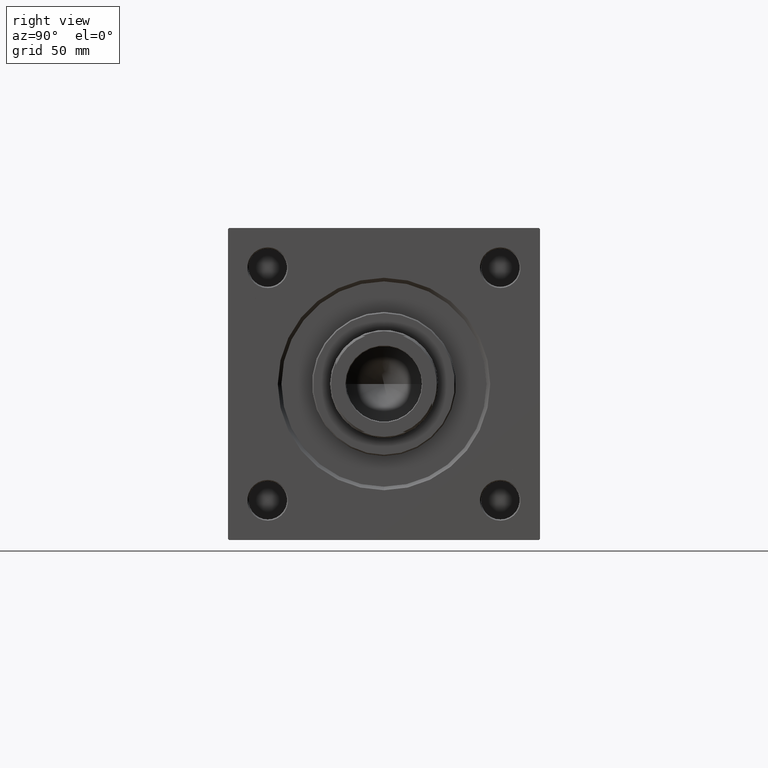
[diagram: clean part render]
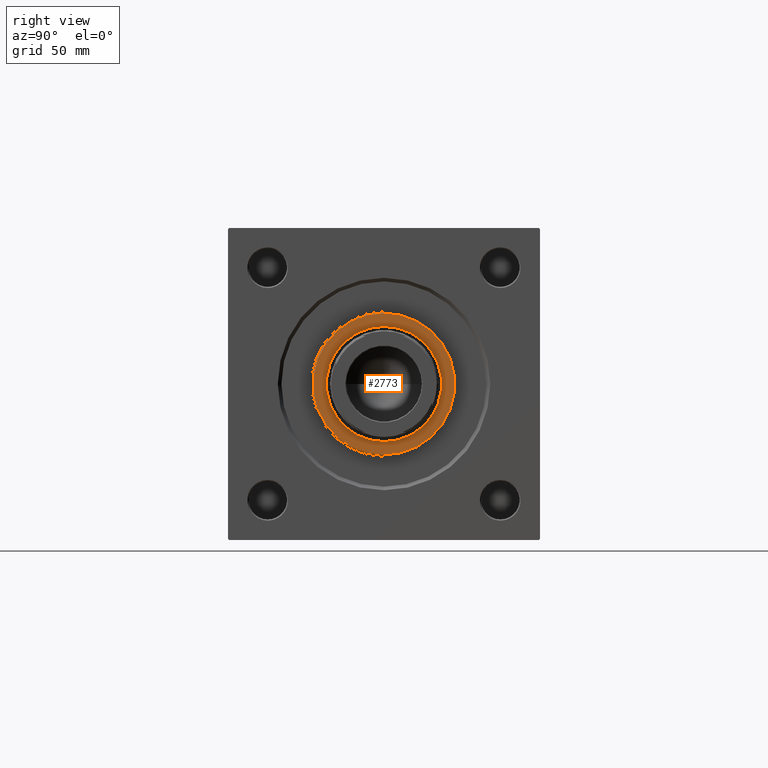
[diagram: same view with one face highlighted and labeled with its STEP entity id]
A machine part, right view. The second image highlights one B-rep face of the part: STEP entity #2773.
In plain terms, the highlighted planar face has unit normal (1, 0, 0).
Its self-contained STEP definition (entity closure, byte-faithful):
#1171 = EDGE_CURVE ( 'NONE', #33801, #13780, #24903, .T. ) ;
#2162 = FACE_BOUND ( 'NONE', #49470, .T. ) ;
#2281 = CARTESIAN_POINT ( 'NONE',  ( 24.00000000000000355, 0.000000000000000000, 37.69999999999999574 ) ) ;
#2773 = ADVANCED_FACE ( 'NONE', ( #2162, #44929 ), #36749, .T. ) ;
#4560 = AXIS2_PLACEMENT_3D ( 'NONE', #43165, #30374, #45980 ) ;
#6393 = CIRCLE ( 'NONE', #35030, 24.00000000000000355 ) ;
#8314 = EDGE_CURVE ( 'NONE', #10326, #44380, #13652, .T. ) ;
#10269 = CIRCLE ( 'NONE', #4560, 29.50000000000000000 ) ;
#10326 = VERTEX_POINT ( 'NONE', #44219 ) ;
#11711 = ORIENTED_EDGE ( 'NONE', *, *, #8314, .T. ) ;
#11857 = AXIS2_PLACEMENT_3D ( 'NONE', #21406, #17327, #32920 ) ;
#13652 = CIRCLE ( 'NONE', #42268, 29.50000000000000000 ) ;
#13780 = VERTEX_POINT ( 'NONE', #18159 ) ;
#14355 = EDGE_CURVE ( 'NONE', #13780, #33801, #6393, .T. ) ;
#15952 = EDGE_LOOP ( 'NONE', ( #49685, #11711 ) ) ;
#16600 = DIRECTION ( 'NONE',  ( 0.000000000000000000, 0.000000000000000000, 1.000000000000000000 ) ) ;
#17327 = DIRECTION ( 'NONE',  ( 0.000000000000000000, 0.000000000000000000, 1.000000000000000000 ) ) ;
#18159 = CARTESIAN_POINT ( 'NONE',  ( -24.00000000000000355, 2.939152317953648289E-15, 37.69999999999999574 ) ) ;
#19196 = AXIS2_PLACEMENT_3D ( 'NONE', #27886, #16600, #39881 ) ;
#21406 = CARTESIAN_POINT ( 'NONE',  ( 0.000000000000000000, 0.000000000000000000, 37.69999999999999574 ) ) ;
#24903 = CIRCLE ( 'NONE', #19196, 24.00000000000000355 ) ;
#25910 = DIRECTION ( 'NONE',  ( 0.000000000000000000, 0.000000000000000000, 1.000000000000000000 ) ) ;
#27424 = EDGE_CURVE ( 'NONE', #44380, #10326, #10269, .T. ) ;
#27886 = CARTESIAN_POINT ( 'NONE',  ( 0.000000000000000000, 0.000000000000000000, 37.69999999999999574 ) ) ;
#28170 = CARTESIAN_POINT ( 'NONE',  ( -29.50000000000000000, 0.000000000000000000, 37.69999999999999574 ) ) ;
#29804 = ORIENTED_EDGE ( 'NONE', *, *, #1171, .F. ) ;
#30374 = DIRECTION ( 'NONE',  ( 0.000000000000000000, 0.000000000000000000, 1.000000000000000000 ) ) ;
#31623 = ORIENTED_EDGE ( 'NONE', *, *, #14355, .F. ) ;
#32454 = DIRECTION ( 'NONE',  ( 0.000000000000000000, 0.000000000000000000, 1.000000000000000000 ) ) ;
#32920 = DIRECTION ( 'NONE',  ( 1.000000000000000000, 0.000000000000000000, -0.000000000000000000 ) ) ;
#33801 = VERTEX_POINT ( 'NONE', #2281 ) ;
#35030 = AXIS2_PLACEMENT_3D ( 'NONE', #37663, #25910, #41512 ) ;
#36749 = PLANE ( 'NONE',  #11857 ) ;
#36779 = DIRECTION ( 'NONE',  ( 1.000000000000000000, 0.000000000000000000, 0.000000000000000000 ) ) ;
#37663 = CARTESIAN_POINT ( 'NONE',  ( 0.000000000000000000, 0.000000000000000000, 37.69999999999999574 ) ) ;
#39881 = DIRECTION ( 'NONE',  ( 1.000000000000000000, 0.000000000000000000, 0.000000000000000000 ) ) ;
#41512 = DIRECTION ( 'NONE',  ( 1.000000000000000000, 0.000000000000000000, 0.000000000000000000 ) ) ;
#42268 = AXIS2_PLACEMENT_3D ( 'NONE', #43731, #32454, #36779 ) ;
#43165 = CARTESIAN_POINT ( 'NONE',  ( 0.000000000000000000, 0.000000000000000000, 37.69999999999999574 ) ) ;
#43731 = CARTESIAN_POINT ( 'NONE',  ( 0.000000000000000000, 0.000000000000000000, 37.69999999999999574 ) ) ;
#44219 = CARTESIAN_POINT ( 'NONE',  ( 29.50000000000000000, 3.643324227463375391E-15, 37.69999999999999574 ) ) ;
#44380 = VERTEX_POINT ( 'NONE', #28170 ) ;
#44929 = FACE_OUTER_BOUND ( 'NONE', #15952, .T. ) ;
#45980 = DIRECTION ( 'NONE',  ( 1.000000000000000000, 0.000000000000000000, 0.000000000000000000 ) ) ;
#49470 = EDGE_LOOP ( 'NONE', ( #29804, #31623 ) ) ;
#49685 = ORIENTED_EDGE ( 'NONE', *, *, #27424, .T. ) ;